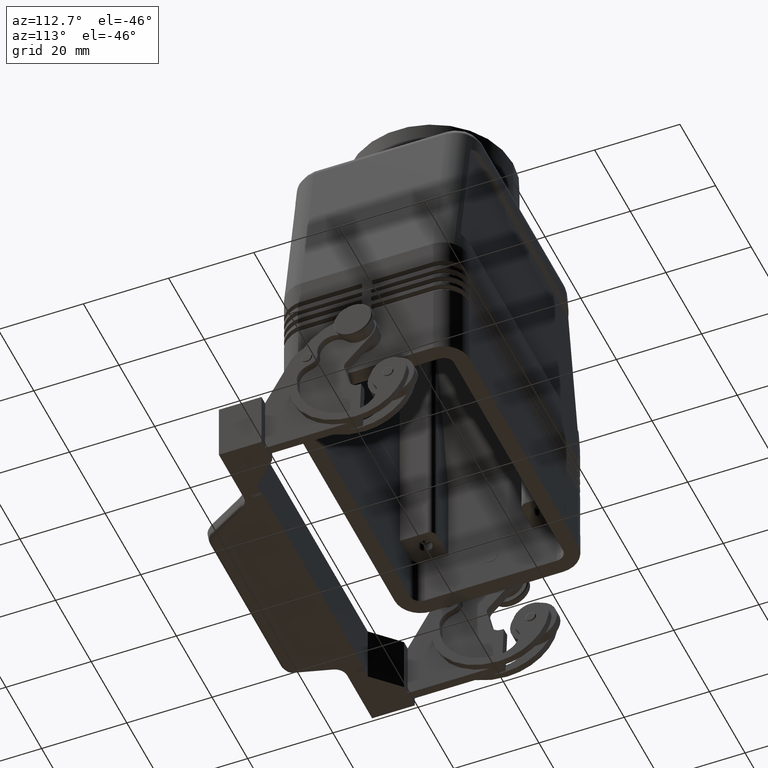
[diagram: clean part render]
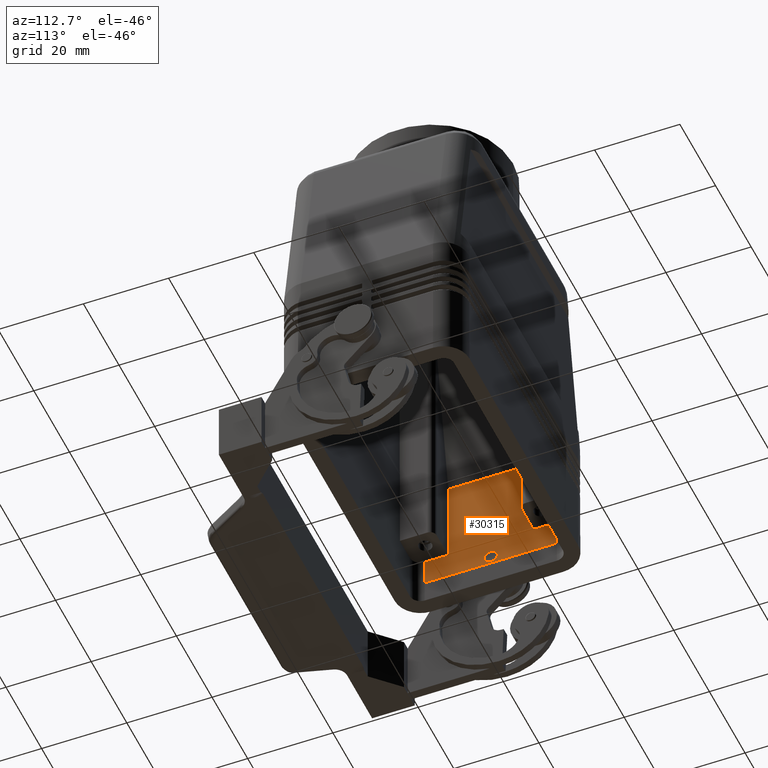
[diagram: same view with one face highlighted and labeled with its STEP entity id]
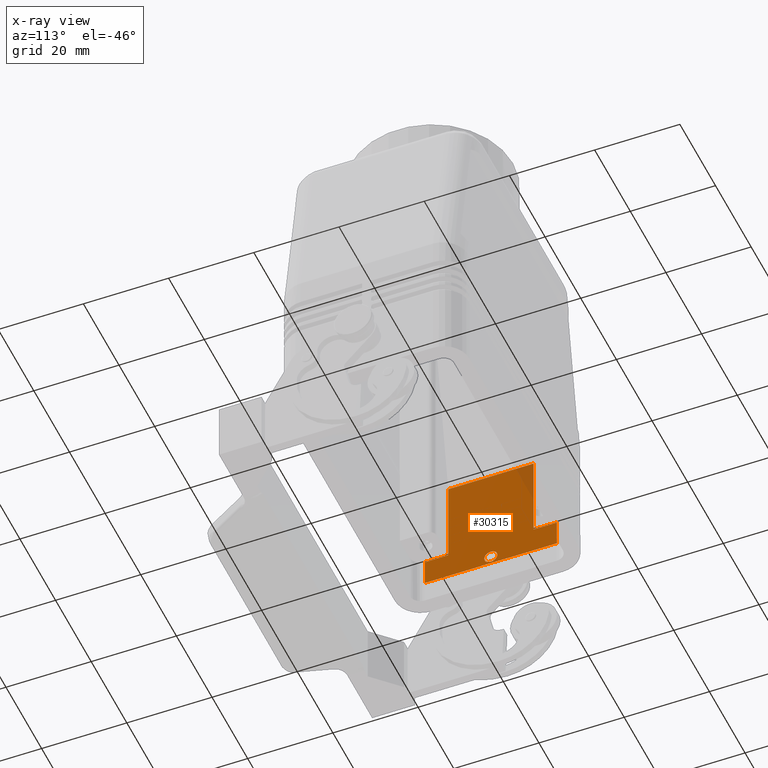
[diagram: x-ray of the same camera — body ghosted, the highlighted face saturated]
A machine part, auxiliary view. The second image highlights one B-rep face of the part: STEP entity #30315.
The next image is the same camera in x-ray: the body ghosted, the highlighted face saturated — about 4% of this face is hidden behind the body in this view.
In plain terms, the highlighted planar face has unit normal (-1, 0, 0).
Its self-contained STEP definition (entity closure, byte-faithful):
#6300=CARTESIAN_POINT('',(-33.000000000000007,0.0,9.050000000000001));
#6301=VERTEX_POINT('',#6300);
#6310=CARTESIAN_POINT('',(-33.0,1.898140E-016,5.949999999999999));
#6311=VERTEX_POINT('',#6310);
#6312=CARTESIAN_POINT('',(-33.0,0.0,7.500000000000000));
#6313=DIRECTION('',(-1.0,0.0,0.0));
#6314=DIRECTION('',(0.0,0.0,1.0));
#6315=AXIS2_PLACEMENT_3D('',#6312,#6313,#6314);
#6316=CIRCLE('',#6315,1.550000000000000);
#6317=EDGE_CURVE('',#6311,#6301,#6316,.T.);
#15971=CARTESIAN_POINT('',(-33.0,0.0,7.500000000000000));
#15972=DIRECTION('',(-1.0,0.0,0.0));
#15973=DIRECTION('',(0.0,0.0,1.0));
#15974=AXIS2_PLACEMENT_3D('',#15971,#15972,#15973);
#15975=CIRCLE('',#15974,1.550000000000000);
#15976=EDGE_CURVE('',#6301,#6311,#15975,.T.);
#18510=CARTESIAN_POINT('',(-33.0,9.999999999999998,32.500000000000000));
#18511=VERTEX_POINT('',#18510);
#18527=CARTESIAN_POINT('',(-33.0,-10.0,32.500000000000000));
#18528=VERTEX_POINT('',#18527);
#18536=CARTESIAN_POINT('',(-33.0,-10.0,32.500000000000000));
#18537=DIRECTION('',(0.0,1.0,0.0));
#18538=VECTOR('',#18537,20.0);
#18539=LINE('',#18536,#18538);
#18540=EDGE_CURVE('',#18528,#18511,#18539,.T.);
#18803=CARTESIAN_POINT('',(-33.0,-10.0,12.000000000000002));
#18804=VERTEX_POINT('',#18803);
#18805=CARTESIAN_POINT('',(-33.0,-10.0,32.500000000000000));
#18806=DIRECTION('',(0.0,0.0,-1.0));
#18807=VECTOR('',#18806,20.500000000000000);
#18808=LINE('',#18805,#18807);
#18809=EDGE_CURVE('',#18528,#18804,#18808,.T.);
#18915=CARTESIAN_POINT('',(-33.0,-15.499999999999996,12.0));
#18916=VERTEX_POINT('',#18915);
#18917=CARTESIAN_POINT('',(-33.0,-10.0,12.000000000000002));
#18918=DIRECTION('',(0.0,-1.0,0.0));
#18919=VECTOR('',#18918,5.499999999999996);
#18920=LINE('',#18917,#18919);
#18921=EDGE_CURVE('',#18804,#18916,#18920,.T.);
#18962=CARTESIAN_POINT('',(-33.0,-15.499999999999996,5.500000000000000));
#18963=VERTEX_POINT('',#18962);
#18971=CARTESIAN_POINT('',(-33.0,-15.499999999999996,5.500000000000000));
#18972=DIRECTION('',(0.0,0.0,1.0));
#18973=VECTOR('',#18972,6.500000000000000);
#18974=LINE('',#18971,#18973);
#18975=EDGE_CURVE('',#18963,#18916,#18974,.T.);
#19469=CARTESIAN_POINT('',(-33.0,10.0,12.000000000000002));
#19470=VERTEX_POINT('',#19469);
#19471=CARTESIAN_POINT('',(-33.0,10.0,12.000000000000002));
#19472=DIRECTION('',(0.0,0.0,1.0));
#19473=VECTOR('',#19472,20.500000000000000);
#19474=LINE('',#19471,#19473);
#19475=EDGE_CURVE('',#19470,#18511,#19474,.T.);
#19508=CARTESIAN_POINT('',(-33.0,15.500000000000000,12.0));
#19509=VERTEX_POINT('',#19508);
#19510=CARTESIAN_POINT('',(-33.0,15.500000000000000,12.0));
#19511=DIRECTION('',(0.0,-1.0,0.0));
#19512=VECTOR('',#19511,5.500000000000000);
#19513=LINE('',#19510,#19512);
#19514=EDGE_CURVE('',#19509,#19470,#19513,.T.);
#30284=CARTESIAN_POINT('',(-33.0,-15.499999999999996,5.500000000000000));
#30285=DIRECTION('',(-1.0,0.0,0.0));
#30286=DIRECTION('',(0.0,0.0,1.0));
#30287=AXIS2_PLACEMENT_3D('',#30284,#30285,#30286);
#30288=PLANE('',#30287);
#30289=ORIENTED_EDGE('',*,*,#18921,.T.);
#30290=ORIENTED_EDGE('',*,*,#18975,.F.);
#30291=CARTESIAN_POINT('',(-33.0,15.500000000000000,5.500000000000000));
#30292=VERTEX_POINT('',#30291);
#30293=CARTESIAN_POINT('',(-33.0,15.500000000000000,5.500000000000000));
#30294=DIRECTION('',(0.0,-1.0,0.0));
#30295=VECTOR('',#30294,30.999999999999996);
#30296=LINE('',#30293,#30295);
#30297=EDGE_CURVE('',#30292,#18963,#30296,.T.);
#30298=ORIENTED_EDGE('',*,*,#30297,.F.);
#30299=CARTESIAN_POINT('',(-33.0,15.500000000000000,5.500000000000000));
#30300=DIRECTION('',(0.0,0.0,1.0));
#30301=VECTOR('',#30300,6.500000000000000);
#30302=LINE('',#30299,#30301);
#30303=EDGE_CURVE('',#30292,#19509,#30302,.T.);
#30304=ORIENTED_EDGE('',*,*,#30303,.T.);
#30305=ORIENTED_EDGE('',*,*,#19514,.T.);
#30306=ORIENTED_EDGE('',*,*,#19475,.T.);
#30307=ORIENTED_EDGE('',*,*,#18540,.F.);
#30308=ORIENTED_EDGE('',*,*,#18809,.T.);
#30309=EDGE_LOOP('',(#30289,#30290,#30298,#30304,#30305,#30306,#30307,#30308));
#30310=FACE_OUTER_BOUND('',#30309,.T.);
#30311=ORIENTED_EDGE('',*,*,#15976,.T.);
#30312=ORIENTED_EDGE('',*,*,#6317,.T.);
#30313=EDGE_LOOP('',(#30311,#30312));
#30314=FACE_BOUND('',#30313,.T.);
#30315=ADVANCED_FACE('',(#30310,#30314),#30288,.F.);